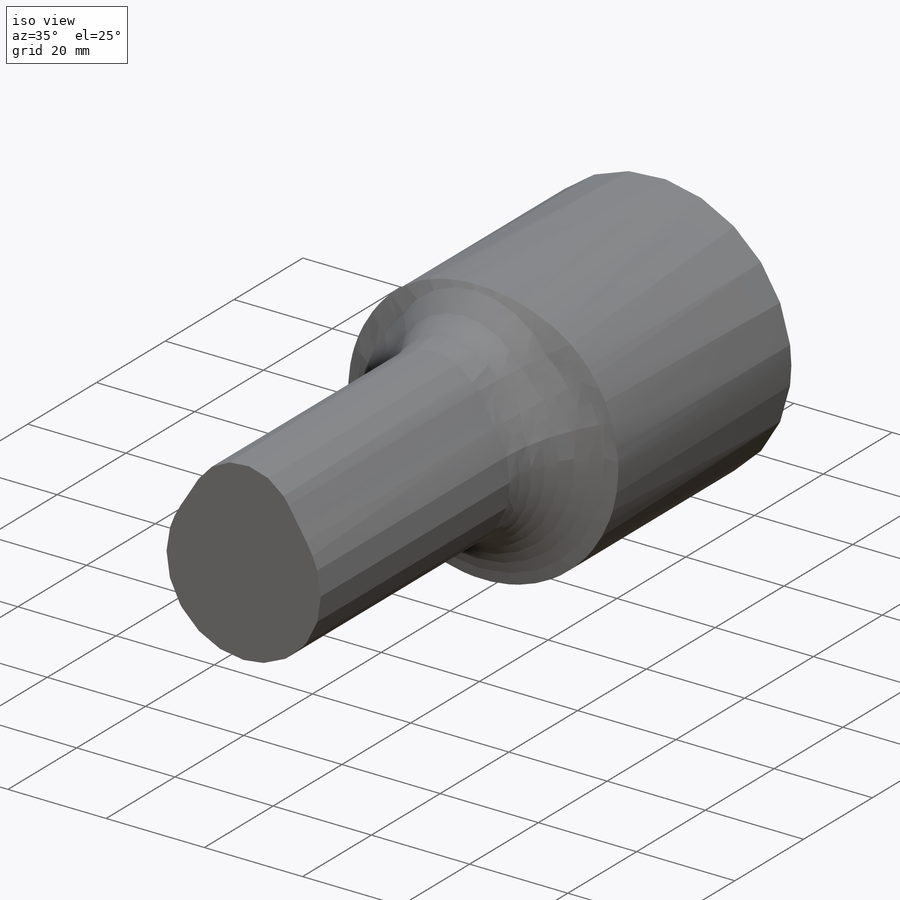
[diagram: iso view]
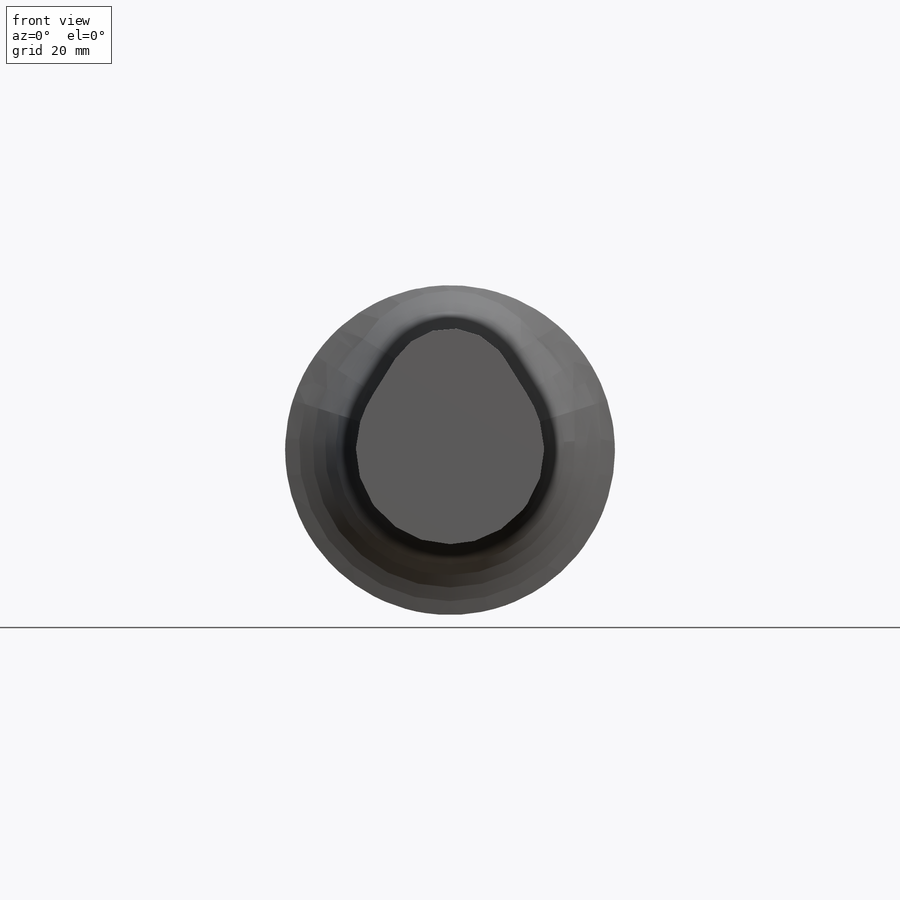
[diagram: front view]
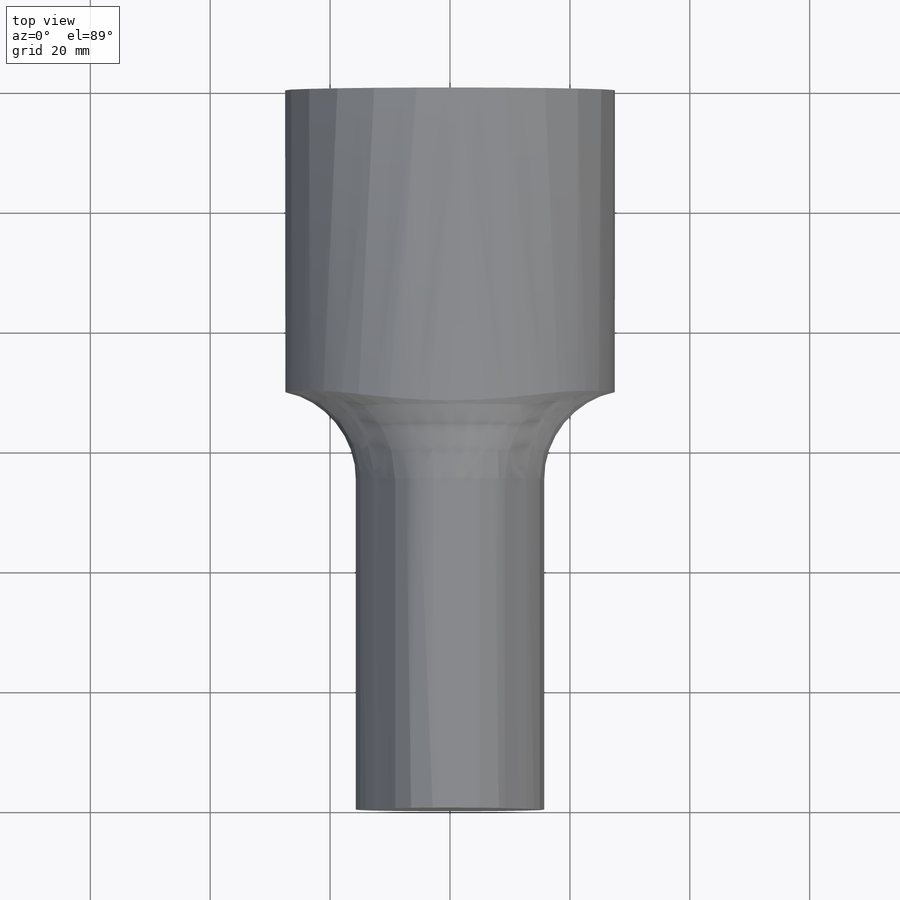
[diagram: top view]
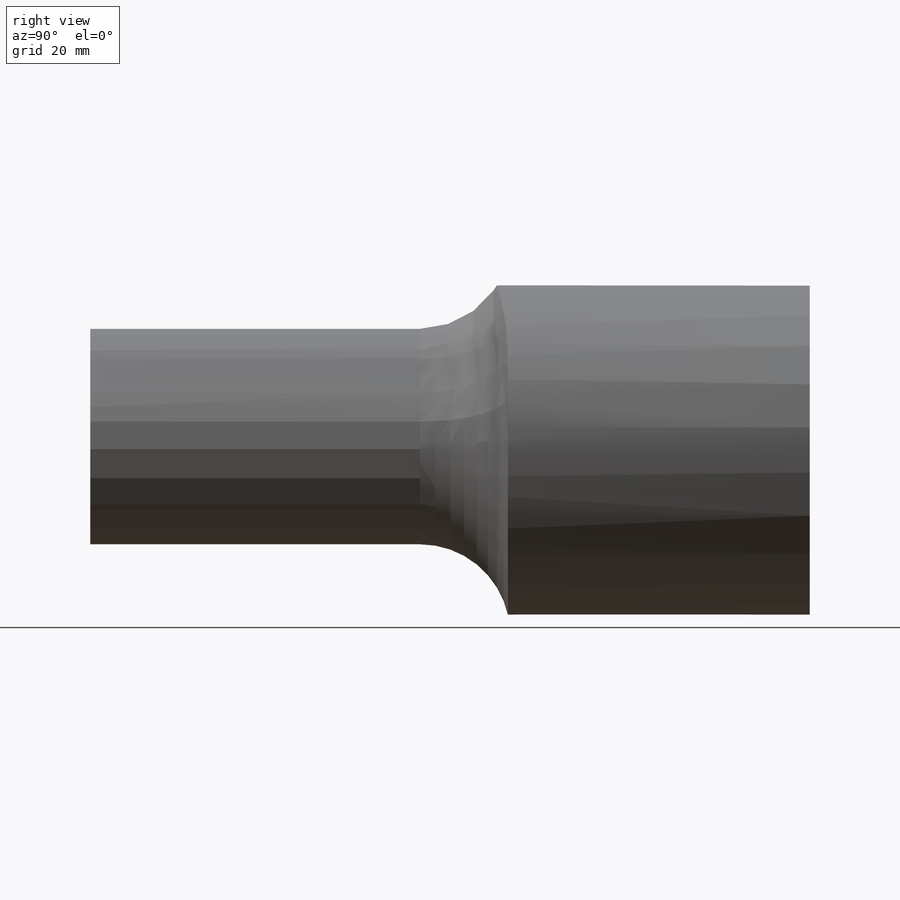
[diagram: right view]
SOLIDWORKS PART (.sldprt)
format: sldprt  version: not decoded by parser v0  size: 420,352 bytes
history: native  units: mm
features: plane x3, sketch x3, material x1, extrude x1, revolve x1, sweep x1 (+8 scaffold rows collapsed)
feature tree (18):
  scaffold x8  (default folders/planes/origin — collapsed)
  material  "Kupfer-Beryllium, UNS C17300"
  plane  "Vorne"
  plane  "Oben"
  plane  "Rechts"
  sketch  "Skizze1"  dims[D1=55.0mm]
  extrude  "Aufsatz-Linear austragen1"  Depth=120mm
  sketch  "Skizze2"  dims[c1.D1=10.8mm c1.D2=15.715mm c1.D3=15.715mm c2.D1=10.8mm c2.D2=15.715mm c2.D4=19.6mm c2.D5=170.0mm c2.D6=250.0mm c3.D2=36.0mm c3.D7=4.75mm c3.D8=9.5mm c3.D9=13.3mm]
  sketch  "Skizze4"  dims[D1=15.0mm D2=40.0mm D3=50.0mm]
  revolve  "Rotation1"  Angle=360deg
  sweep  "Schnitt-Austragung2"
decode coverage: 5 of 6 modeling features carry decoded parameters
note: suppression state not decoded; provenance and decode notes live in map.json
